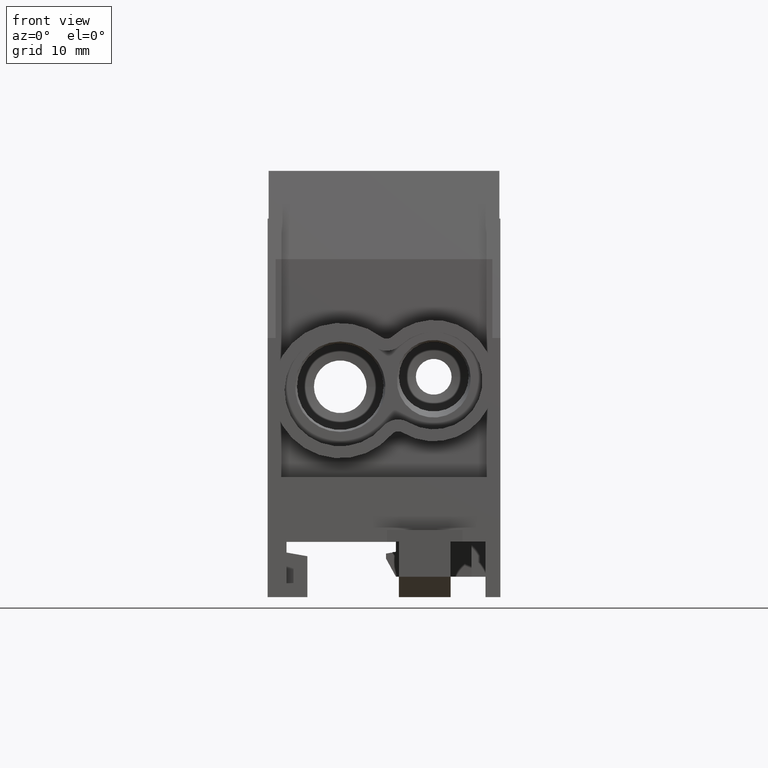
[diagram: clean part render]
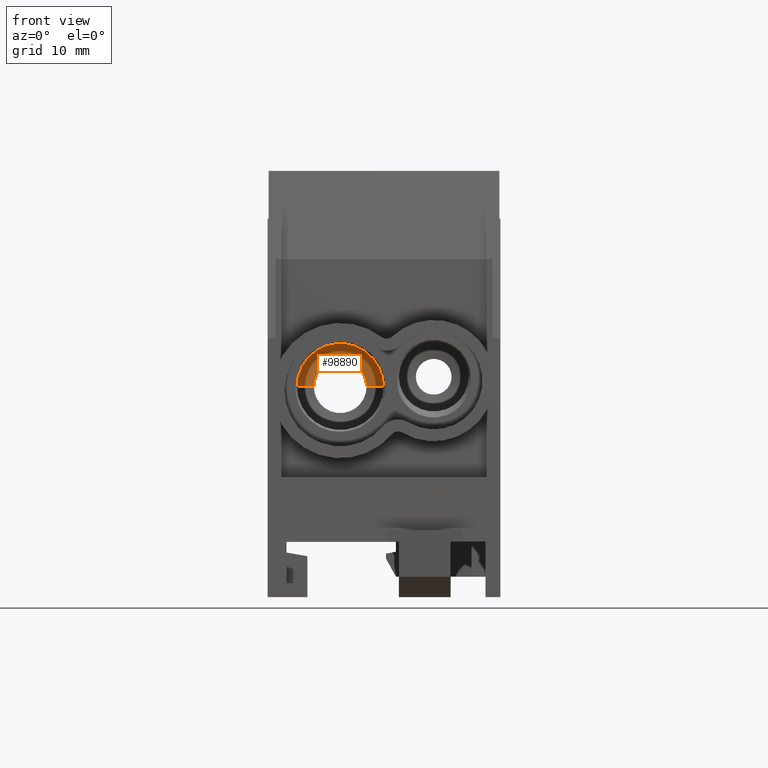
[diagram: same view with one face highlighted and labeled with its STEP entity id]
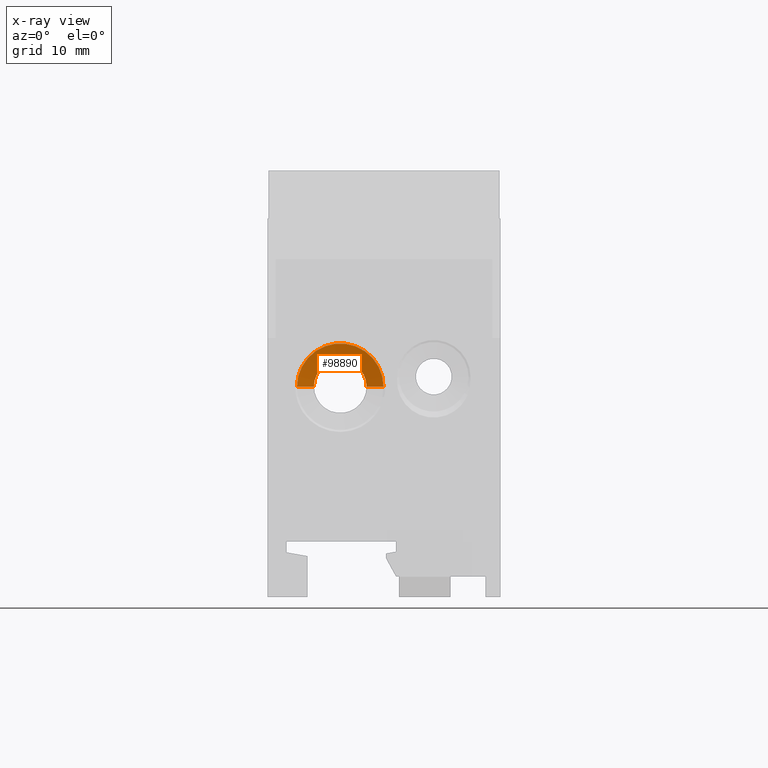
[diagram: x-ray of the same camera — body ghosted, the highlighted face saturated]
A machine part, front view. The second image highlights one B-rep face of the part: STEP entity #98890.
The next image is the same camera in x-ray: the body ghosted, the highlighted face saturated — about 0% of this face is hidden behind the body in this view.
In plain terms, the highlighted conical surface has half-angle 80 deg.
Its self-contained STEP definition (entity closure, byte-faithful):
#63790=CARTESIAN_POINT('',(-7.04861545411371,6.88338275267597E-15,
7.60000000000002));
#63800=VERTEX_POINT('',#63790);
#63850=CARTESIAN_POINT('',(-4.39999999999999,7.105427357601E-15,
7.60000000000002));
#63860=DIRECTION('',(0.,-1.,0.));
#63870=DIRECTION('',(1.,0.,0.));
#63880=AXIS2_PLACEMENT_3D('',#63850,#63860,#63870);
#63890=CIRCLE('',#63880,2.64861545411372);
#63900=CARTESIAN_POINT('',(-1.75138454588627,6.88338275267597E-15,
7.60000000000002));
#63910=VERTEX_POINT('',#63900);
#63920=EDGE_CURVE('',#63910,#63800,#63890,.T.);
#73600=CARTESIAN_POINT('',(-0.0499999999999961,-0.299999999999996,
7.60000000000001));
#73610=VERTEX_POINT('',#73600);
#73640=CARTESIAN_POINT('',(-4.4,-0.299999999999997,7.60000000000001));
#73650=DIRECTION('',(2.55432488524287E-16,-1.,1.77619756370172E-16));
#73660=DIRECTION('',(-1.,-2.55432488524287E-16,-5.55111512312578E-17));
#73670=AXIS2_PLACEMENT_3D('',#73640,#73650,#73660);
#73680=CIRCLE('',#73670,4.35);
#73690=CARTESIAN_POINT('',(-8.75,-0.300000000000172,7.60000000000001));
#73700=VERTEX_POINT('',#73690);
#73710=EDGE_CURVE('',#73610,#73700,#73680,.T.);
#73950=CARTESIAN_POINT('',(1.27128181961757,-0.532977633918328,
7.60000000000002));
#73960=DIRECTION('',(0.984807753012207,-0.173648177666935,0.));
#73970=VECTOR('',#73960,5.75877048314349);
#73980=LINE('',#73950,#73970);
#73990=EDGE_CURVE('',#63910,#73610,#73980,.T.);
#74030=CARTESIAN_POINT('',(-10.0712818196176,-0.532977633918328,
7.60000000000002));
#74040=DIRECTION('',(-0.984807753012207,-0.173648177666935,
1.54230564024025E-16));
#74050=VECTOR('',#74040,5.75877048314349);
#74060=LINE('',#74030,#74050);
#74070=EDGE_CURVE('',#63800,#73700,#74060,.T.);
#98780=CARTESIAN_POINT('',(-4.39999999999999,-0.532977633918328,
7.60000000000002));
#98790=DIRECTION('',(0.,-1.,0.));
#98800=DIRECTION('',(1.,0.,0.));
#98810=AXIS2_PLACEMENT_3D('',#98780,#98790,#98800);
#98820=CONICAL_SURFACE('',#98810,5.67128181961756,1.39626340159546);
#98830=ORIENTED_EDGE('',*,*,#73990,.T.);
#98840=ORIENTED_EDGE('',*,*,#63920,.F.);
#98850=ORIENTED_EDGE('',*,*,#74070,.F.);
#98860=ORIENTED_EDGE('',*,*,#73710,.T.);
#98870=EDGE_LOOP('',(#98860,#98850,#98840,#98830));
#98880=FACE_OUTER_BOUND('',#98870,.T.);
#98890=ADVANCED_FACE('',(#98880),#98820,.F.);